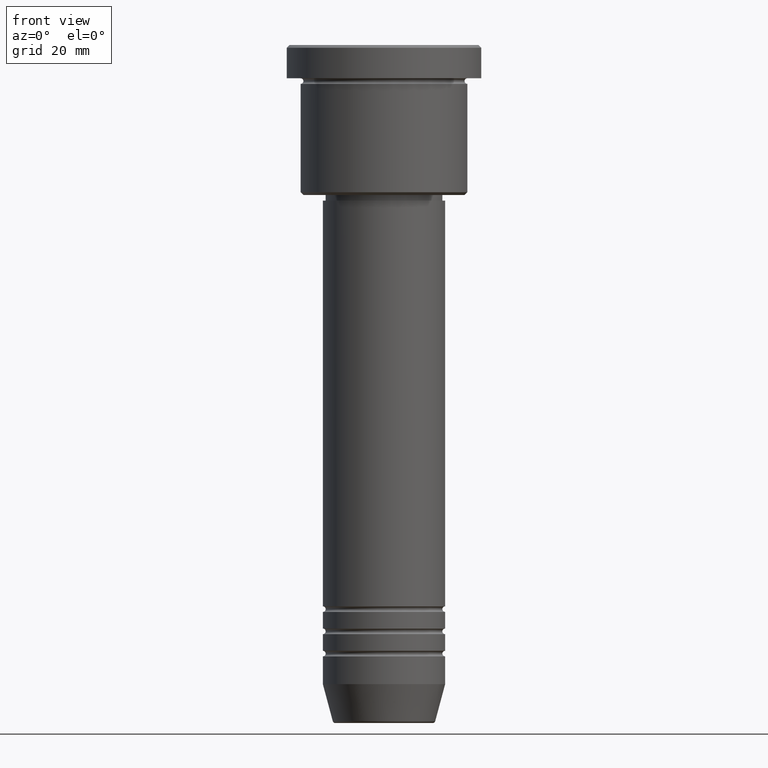
[diagram: clean part render]
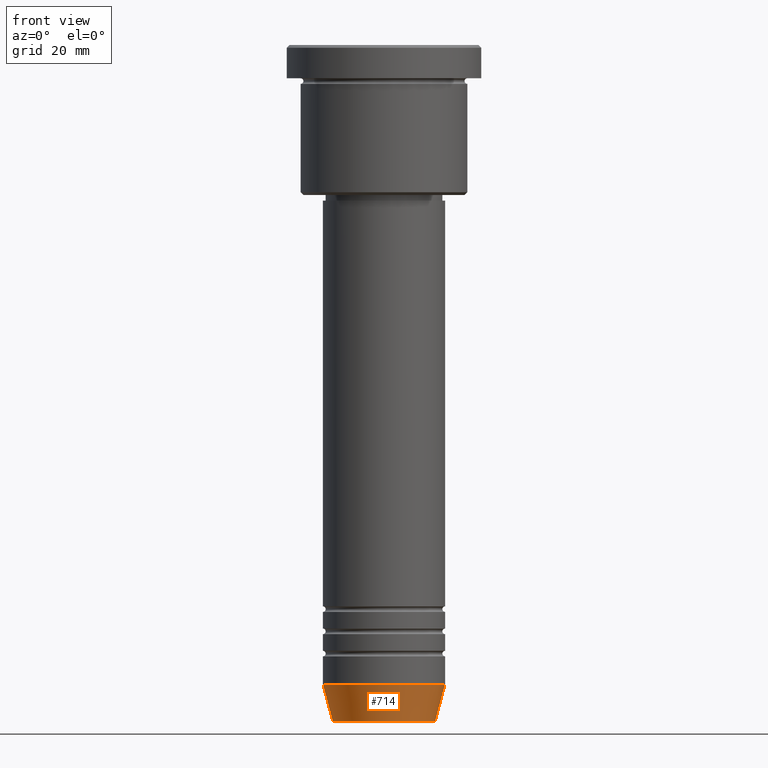
[diagram: same view with one face highlighted and labeled with its STEP entity id]
A machine part, front view. The second image highlights one B-rep face of the part: STEP entity #714.
In plain terms, the highlighted conical surface has half-angle 15 deg.
Its self-contained STEP definition (entity closure, byte-faithful):
#12 = VERTEX_POINT ( 'NONE', #369 ) ;
#28 = DIRECTION ( 'NONE',  ( 1.000000000000000000, 0.000000000000000000, 0.000000000000000000 ) ) ;
#33 = CARTESIAN_POINT ( 'NONE',  ( -9.223655072137194821, 1.238341722557647399E-15, -121.6294095225512422 ) ) ;
#54 = EDGE_CURVE ( 'NONE', #122, #823, #613, .T. ) ;
#98 = AXIS2_PLACEMENT_3D ( 'NONE', #480, #214, #28 ) ;
#122 = VERTEX_POINT ( 'NONE', #33 ) ;
#138 = CARTESIAN_POINT ( 'NONE',  ( -11.00000000000000000, 1.347111479062088405E-15, -115.0000000000000000 ) ) ;
#139 = ORIENTED_EDGE ( 'NONE', *, *, #971, .F. ) ;
#214 = DIRECTION ( 'NONE',  ( -0.000000000000000000, -0.000000000000000000, 1.000000000000000000 ) ) ;
#225 = DIRECTION ( 'NONE',  ( 0.2588190451025213501, 0.000000000000000000, 0.9659258262890680902 ) ) ;
#234 = LINE ( 'NONE', #968, #401 ) ;
#275 = DIRECTION ( 'NONE',  ( 1.000000000000000000, 0.000000000000000000, 0.000000000000000000 ) ) ;
#279 = ORIENTED_EDGE ( 'NONE', *, *, #54, .T. ) ;
#301 = CARTESIAN_POINT ( 'NONE',  ( 0.000000000000000000, 0.000000000000000000, -115.0000000000000000 ) ) ;
#369 = CARTESIAN_POINT ( 'NONE',  ( 11.00000000000000000, 0.000000000000000000, -115.0000000000000000 ) ) ;
#401 = VECTOR ( 'NONE', #225, 1000.000000000000000 ) ;
#421 = EDGE_CURVE ( 'NONE', #928, #12, #1148, .T. ) ;
#439 = VECTOR ( 'NONE', #1165, 1000.000000000000000 ) ;
#480 = CARTESIAN_POINT ( 'NONE',  ( 0.000000000000000000, 0.000000000000000000, -115.0000000000000000 ) ) ;
#613 = CIRCLE ( 'NONE', #719, 9.223655072137194821 ) ;
#630 = CARTESIAN_POINT ( 'NONE',  ( -11.00000000000000000, 1.347111479062088405E-15, -115.0000000000000000 ) ) ;
#645 = DIRECTION ( 'NONE',  ( 1.000000000000000000, 0.000000000000000000, 0.000000000000000000 ) ) ;
#688 = EDGE_LOOP ( 'NONE', ( #139, #279, #1142, #1031 ) ) ;
#714 = ADVANCED_FACE ( 'NONE', ( #944 ), #1134, .T. ) ;
#719 = AXIS2_PLACEMENT_3D ( 'NONE', #997, #1025, #275 ) ;
#728 = LINE ( 'NONE', #630, #439 ) ;
#770 = DIRECTION ( 'NONE',  ( -0.000000000000000000, -0.000000000000000000, 1.000000000000000000 ) ) ;
#823 = VERTEX_POINT ( 'NONE', #950 ) ;
#928 = VERTEX_POINT ( 'NONE', #138 ) ;
#944 = FACE_OUTER_BOUND ( 'NONE', #688, .T. ) ;
#950 = CARTESIAN_POINT ( 'NONE',  ( 9.223655072137194821, 0.000000000000000000, -121.6294095225512422 ) ) ;
#968 = CARTESIAN_POINT ( 'NONE',  ( 11.00000000000000000, 0.000000000000000000, -115.0000000000000000 ) ) ;
#971 = EDGE_CURVE ( 'NONE', #122, #928, #728, .T. ) ;
#997 = CARTESIAN_POINT ( 'NONE',  ( 0.000000000000000000, 0.000000000000000000, -121.6294095225512422 ) ) ;
#1025 = DIRECTION ( 'NONE',  ( -0.000000000000000000, -0.000000000000000000, 1.000000000000000000 ) ) ;
#1031 = ORIENTED_EDGE ( 'NONE', *, *, #421, .F. ) ;
#1034 = AXIS2_PLACEMENT_3D ( 'NONE', #301, #770, #645 ) ;
#1092 = EDGE_CURVE ( 'NONE', #823, #12, #234, .T. ) ;
#1134 = CONICAL_SURFACE ( 'NONE', #98, 11.00000000000000000, 0.2617993877991500740 ) ;
#1142 = ORIENTED_EDGE ( 'NONE', *, *, #1092, .T. ) ;
#1148 = CIRCLE ( 'NONE', #1034, 11.00000000000000000 ) ;
#1165 = DIRECTION ( 'NONE',  ( -0.2588190451025213501, 3.169619151431772337E-17, 0.9659258262890680902 ) ) ;